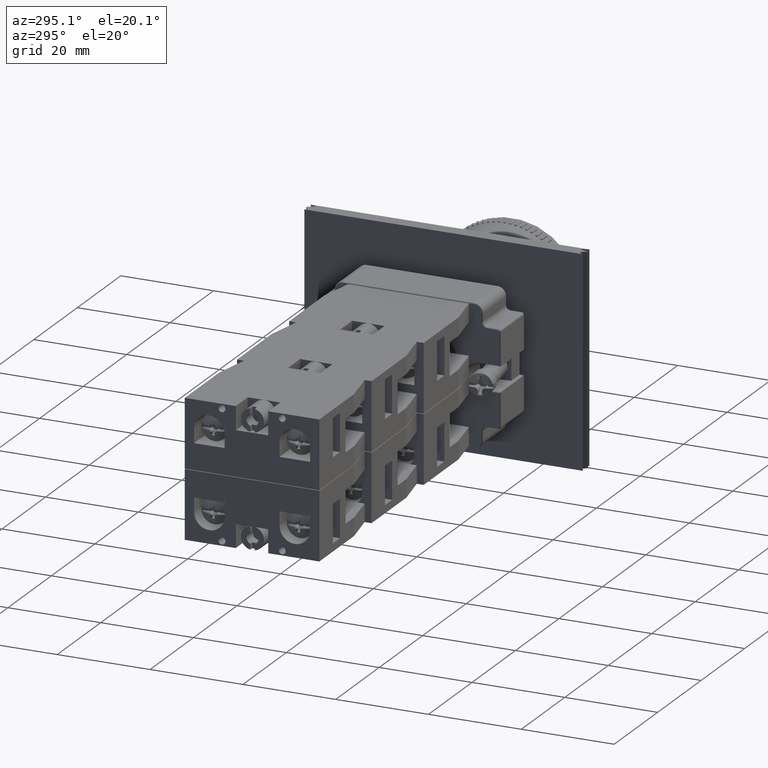
[diagram: clean part render]
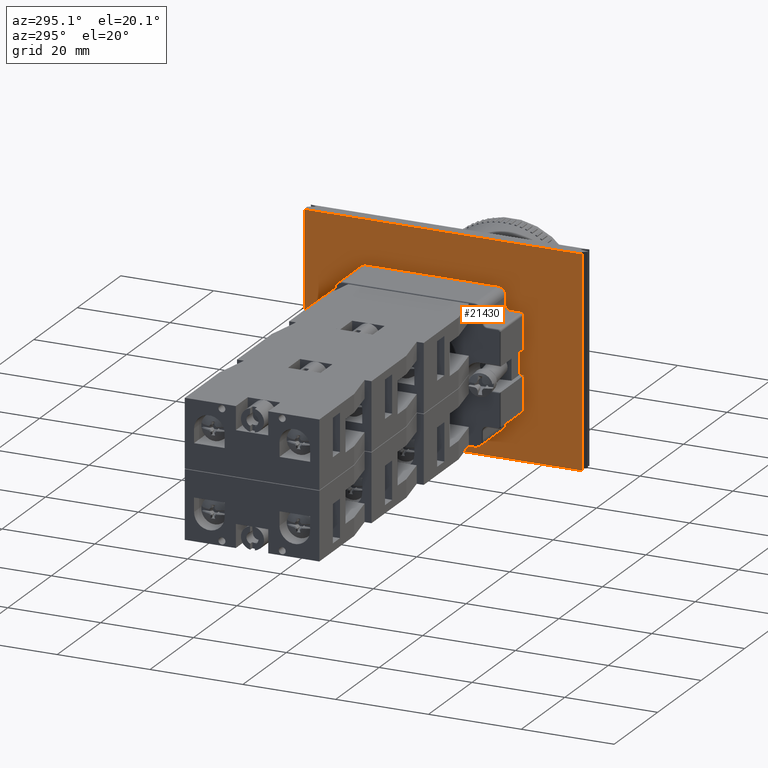
[diagram: same view with one face highlighted and labeled with its STEP entity id]
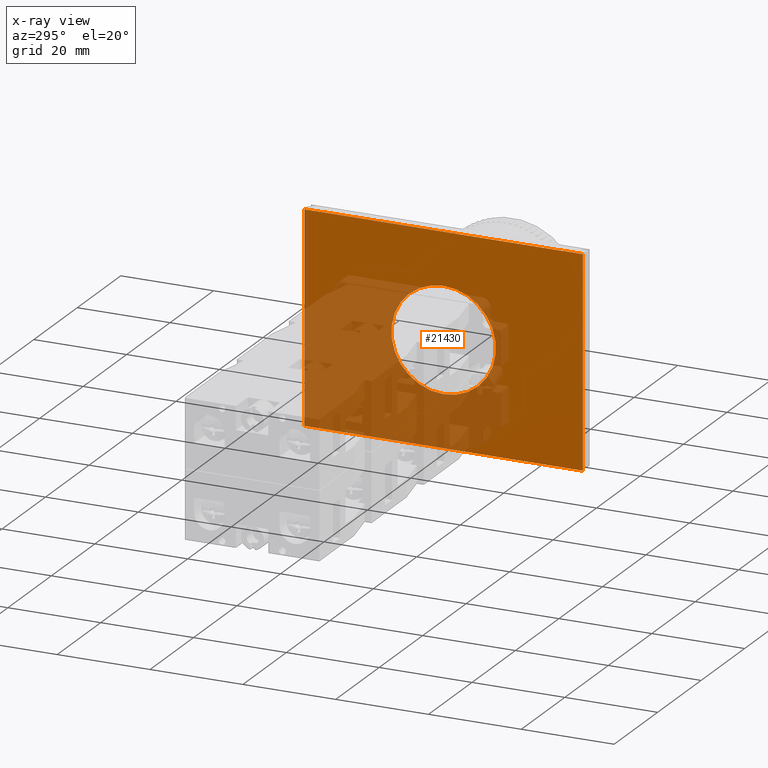
[diagram: x-ray of the same camera — body ghosted, the highlighted face saturated]
A machine part, auxiliary view. The second image highlights one B-rep face of the part: STEP entity #21430.
The next image is the same camera in x-ray: the body ghosted, the highlighted face saturated — about 41% of this face is hidden behind the body in this view.
In plain terms, the highlighted planar face has unit normal (-1, 0, -0).
Its self-contained STEP definition (entity closure, byte-faithful):
#21258=CARTESIAN_POINT('',(-15.704183619849179,-32.725398273954283,11.250000000000000));
#21259=VERTEX_POINT('',#21258);
#21260=CARTESIAN_POINT('',(-15.704183619849179,-32.725398273954283,22.500000000000000));
#21261=DIRECTION('',(1.0,0.0,0.0));
#21262=DIRECTION('',(0.0,0.0,1.0));
#21263=AXIS2_PLACEMENT_3D('',#21260,#21261,#21262);
#21264=CIRCLE('',#21263,11.250000000000000);
#21265=EDGE_CURVE('',#21259,#21259,#21264,.T.);
#21292=CARTESIAN_POINT('',(-15.704183619849179,-2.725398273954287,45.0));
#21293=VERTEX_POINT('',#21292);
#21312=CARTESIAN_POINT('',(-15.704183619849179,-2.725398273954287,0.0));
#21313=VERTEX_POINT('',#21312);
#21322=CARTESIAN_POINT('',(-15.704183619849179,-2.725398273954287,0.0));
#21323=DIRECTION('',(0.0,0.0,1.0));
#21324=VECTOR('',#21323,45.0);
#21325=LINE('',#21322,#21324);
#21326=EDGE_CURVE('',#21313,#21293,#21325,.T.);
#21376=CARTESIAN_POINT('',(-15.704183619849179,-62.725398273954283,45.0));
#21377=VERTEX_POINT('',#21376);
#21386=CARTESIAN_POINT('',(-15.704183619849179,-62.725398273954283,0.0));
#21387=VERTEX_POINT('',#21386);
#21388=CARTESIAN_POINT('',(-15.704183619849179,-62.725398273954283,0.0));
#21389=DIRECTION('',(0.0,0.0,1.0));
#21390=VECTOR('',#21389,45.0);
#21391=LINE('',#21388,#21390);
#21392=EDGE_CURVE('',#21387,#21377,#21391,.T.);
#21406=CARTESIAN_POINT('',(-15.704183619849179,-62.725398273954283,0.0));
#21407=DIRECTION('',(-1.0,0.0,0.0));
#21408=DIRECTION('',(0.0,0.0,1.0));
#21409=AXIS2_PLACEMENT_3D('',#21406,#21407,#21408);
#21410=PLANE('',#21409);
#21411=CARTESIAN_POINT('',(-15.704183619849179,-62.725398273954283,45.0));
#21412=DIRECTION('',(0.0,1.0,0.0));
#21413=VECTOR('',#21412,60.0);
#21414=LINE('',#21411,#21413);
#21415=EDGE_CURVE('',#21377,#21293,#21414,.T.);
#21416=ORIENTED_EDGE('',*,*,#21415,.T.);
#21417=ORIENTED_EDGE('',*,*,#21326,.F.);
#21418=CARTESIAN_POINT('',(-15.704183619849179,-2.725398273954287,0.0));
#21419=DIRECTION('',(0.0,-1.0,0.0));
#21420=VECTOR('',#21419,60.0);
#21421=LINE('',#21418,#21420);
#21422=EDGE_CURVE('',#21313,#21387,#21421,.T.);
#21423=ORIENTED_EDGE('',*,*,#21422,.T.);
#21424=ORIENTED_EDGE('',*,*,#21392,.T.);
#21425=EDGE_LOOP('',(#21416,#21417,#21423,#21424));
#21426=FACE_OUTER_BOUND('',#21425,.T.);
#21427=ORIENTED_EDGE('',*,*,#21265,.T.);
#21428=EDGE_LOOP('',(#21427));
#21429=FACE_BOUND('',#21428,.T.);
#21430=ADVANCED_FACE('',(#21426,#21429),#21410,.T.);